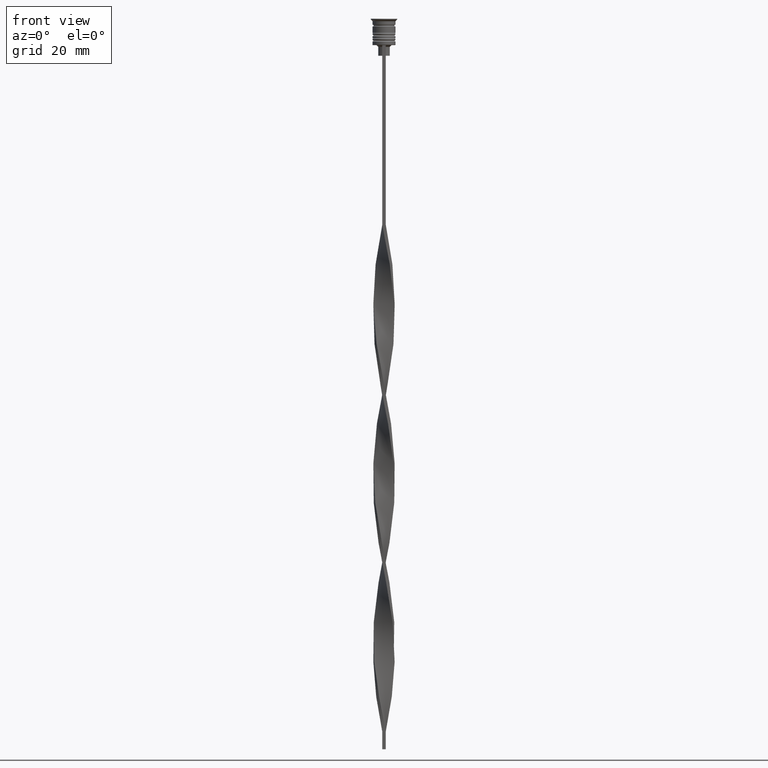
[diagram: clean part render]
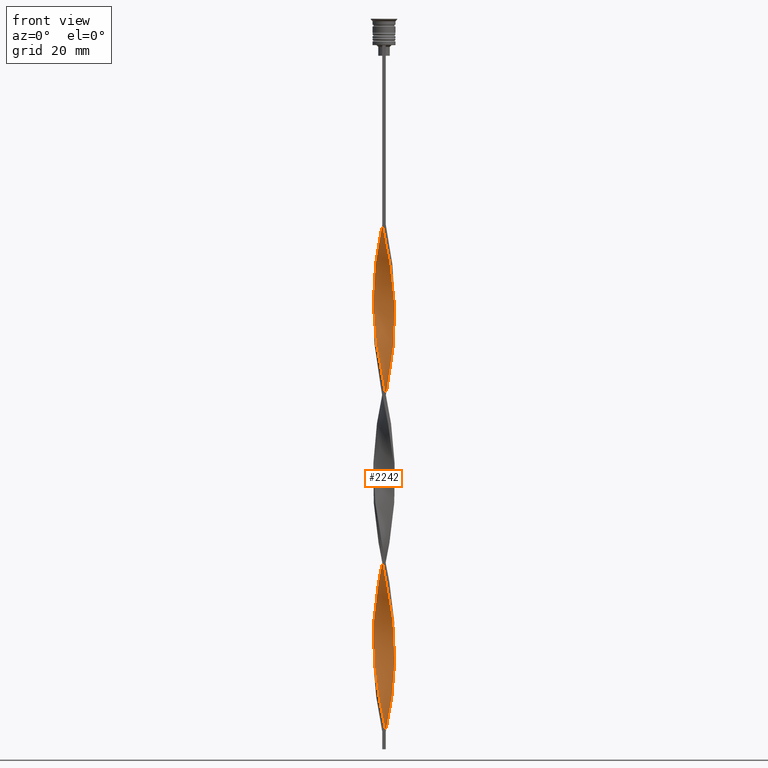
[diagram: same view with one face highlighted and labeled with its STEP entity id]
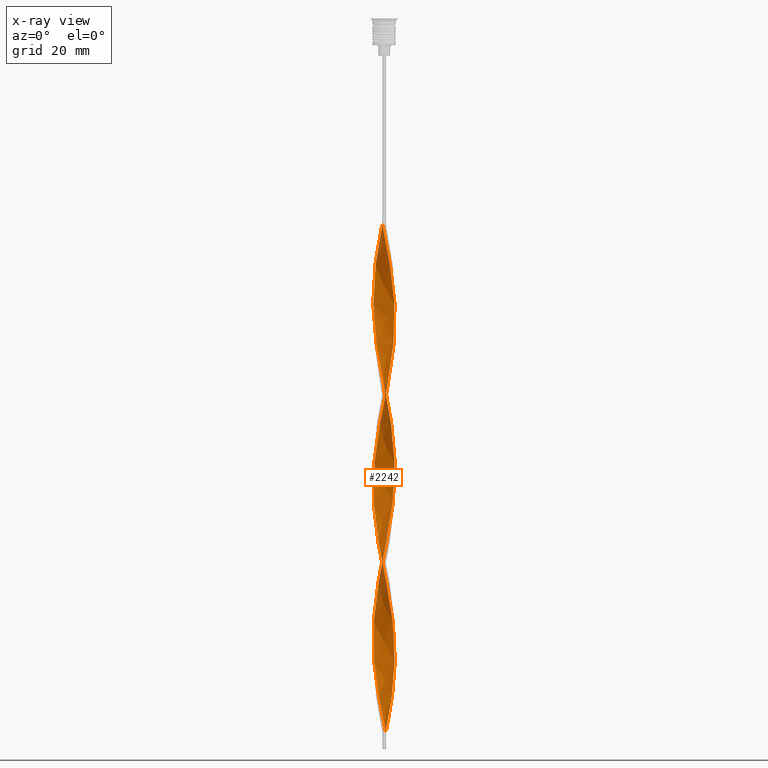
[diagram: x-ray of the same camera — body ghosted, the highlighted face saturated]
A machine part, front view. The second image highlights one B-rep face of the part: STEP entity #2242.
The next image is the same camera in x-ray: the body ghosted, the highlighted face saturated — about 0% of this face is hidden behind the body in this view.
In plain terms, the highlighted face is a freeform B-spline surface patch.
Its self-contained STEP definition (entity closure, byte-faithful):
#3 = CARTESIAN_POINT ( 'NONE',  ( 2.941068349153452388, -0.7746721665374233234, -81.08823529411763786 ) ) ;
#24 = CARTESIAN_POINT ( 'NONE',  ( 1.888233802353294744, -2.400832919529793941, -167.2058823529411882 ) ) ;
#41 = CARTESIAN_POINT ( 'NONE',  ( -2.092734363651090668, -2.206912522777888963, -188.3823529411764355 ) ) ;
#45 = CARTESIAN_POINT ( 'NONE',  ( -0.8934446992291307232, 2.920818749814322324, -113.5588235294117538 ) ) ;
#46 = CARTESIAN_POINT ( 'NONE',  ( 2.695369000030346740, 1.408895295497649247, -188.3823529411764355 ) ) ;
#62 = CARTESIAN_POINT ( 'NONE',  ( 2.004405056496874504, 2.287435325750164505, -98.02941176470588402 ) ) ;
#63 = CARTESIAN_POINT ( 'NONE',  ( -2.825922375284401156, -1.159132575987103841, -138.9705882352941160 ) ) ;
#75 = CARTESIAN_POINT ( 'NONE',  ( -3.033336708616754418, 0.2210620097576128096, -131.9117647058823479 ) ) ;
#79 = CARTESIAN_POINT ( 'NONE',  ( -1.042735103291661192, -2.857044540143419908, -151.6764705882353041 ) ) ;
#100 = CARTESIAN_POINT ( 'NONE',  ( 2.004405056496874504, 2.287435325750164505, -98.02941176470588402 ) ) ;
#104 = CARTESIAN_POINT ( 'NONE',  ( 2.297234924948886370, -2.012992126025985318, -170.0294117647058556 ) ) ;
#105 = CARTESIAN_POINT ( 'NONE',  ( 3.033336708616754418, -0.2210620097576117826, -179.9117647058823195 ) ) ;
#108 =( BOUNDED_CURVE ( )  B_SPLINE_CURVE ( 2, ( #1543, #142, #2969, #1257, #948, #1294, #454, #1003, #967, #2131, #3224, #1804, #989, #1577, #2117, #1823, #433, #3495, #708, #2377, #2936, #1507, #2708, #1560, #2991, #654, #2695, #1781, #163, #2429, #3477, #2416, #2637, #3530, #3258, #724, #3545, #1858, #2058, #177, #3184, #2910, #380, #400, #110, #1220, #2077, #2657, #127, #1657, #1893, #797, #2447, #2788, #3583, #2480, #3055, #1944, #3617, #1082, #2740, #2465, #3566, #3293, #1930, #1311, #763, #3019, #1876, #243, #1051, #2200, #1036, #3004, #1367, #1063, #262, #2167, #192, #1353, #2182, #2221, #3341, #212, #517, #813, #484, #1643, #3324, #1609, #228, #2492, #3070, #3038, #2774, #1336, #529, #3306, #776, #1389, #2514, #1016, #1908 ),
 .UNSPECIFIED., .F., .T. ) 
 B_SPLINE_CURVE_WITH_KNOTS ( ( 3, 2, 2, 2, 2, 2, 2, 2, 2, 2, 2, 2, 2, 2, 2, 2, 2, 2, 2, 2, 2, 2, 2, 2, 2, 2, 2, 2, 2, 2, 2, 2, 2, 2, 2, 2, 2, 2, 2, 2, 2, 2, 2, 2, 2, 2, 2, 2, 2, 2, 2, 3 ),
 ( 0.000000000000000000, 0.01470588235294117453, 0.02941176470588234906, 0.04411764705882353227, 0.05882352941176469813, 0.07352941176470588480, 0.08823529411764706454, 0.1029411764705882443, 0.1176470588235293963, 0.1323529411764705899, 0.1470588235294117696, 0.1617647058823529493, 0.1764705882352941291, 0.1911764705882352811, 0.2058823529411764885, 0.2205882352941176405, 0.2352941176470587925, 0.2500000000000000000, 0.2647058823529411797, 0.2794117647058823595, 0.2941176470588235392, 0.3088235294117647189, 0.3235294117647058987, 0.3382352941176470229, 0.3529411764705882582, 0.3676470588235294379, 0.3823529411764705621, 0.3970588235294117418, 0.4117647058823529771, 0.4264705882352941013, 0.4411764705882352811, 0.4558823529411764608, 0.4705882352941175850, 0.4852941176470588203, 0.5000000000000000000, 0.5147058823529411242, 0.5294117647058823595, 0.5441176470588234837, 0.5588235294117647189, 0.5735294117647058432, 0.5882352941176470784, 0.6029411764705882026, 0.6176470588235294379, 0.6323529411764705621, 0.6470588235294117974, 0.6617647058823529216, 0.6764705882352940458, 0.6911764705882351700, 0.7058823529411765163, 0.7205882352941176405, 0.7352941176470588758, 0.7500000000000000000 ),
 .UNSPECIFIED. ) 
 CURVE ( )  GEOMETRIC_REPRESENTATION_ITEM ( )  RATIONAL_B_SPLINE_CURVE ( ( 1.000000000000000000, 0.9957341762950344677, 1.000000000000000000, 0.9957341762950344677, 1.000000000000000000, 0.9957341762950344677, 1.000000000000000000, 0.9957341762950344677, 1.000000000000000000, 0.9957341762950344677, 1.000000000000000000, 0.9957341762950344677, 1.000000000000000000, 0.9957341762950344677, 1.000000000000000000, 0.9957341762950344677, 1.000000000000000000, 0.9957341762950344677, 1.000000000000000000, 0.9957341762950344677, 1.000000000000000000, 0.9957341762950344677, 1.000000000000000000, 0.9957341762950344677, 1.000000000000000000, 0.9957341762950344677, 1.000000000000000000, 0.9957341762950344677, 1.000000000000000000, 0.9957341762950344677, 1.000000000000000000, 0.9957341762950344677, 1.000000000000000000, 0.9957341762950344677, 1.000000000000000000, 0.9957341762950344677, 1.000000000000000000, 0.9957341762950344677, 1.000000000000000000, 0.9957341762950344677, 1.000000000000000000, 0.9957341762950344677, 1.000000000000000000, 0.9957341762950344677, 1.000000000000000000, 0.9957341762950344677, 1.000000000000000000, 0.9957341762950344677, 1.000000000000000000, 0.9957341762950344677, 1.000000000000000000, 0.9957341762950344677, 1.000000000000000000, 0.9957341762950344677, 1.000000000000000000, 0.9957341762950344677, 1.000000000000000000, 0.9957341762950344677, 1.000000000000000000, 0.9957341762950344677, 1.000000000000000000, 0.9957341762950344677, 1.000000000000000000, 0.9957341762950344677, 1.000000000000000000, 0.9957341762950344677, 1.000000000000000000, 0.9957341762950344677, 1.000000000000000000, 0.9957341762950344677, 1.000000000000000000, 0.9957341762950344677, 1.000000000000000000, 0.9957341762950344677, 1.000000000000000000, 0.9957341762950344677, 1.000000000000000000, 0.9957341762950344677, 1.000000000000000000, 0.9957341762950344677, 1.000000000000000000, 0.9957341762950344677, 1.000000000000000000, 0.9957341762950344677, 1.000000000000000000, 0.9957341762950344677, 1.000000000000000000, 0.9957341762950344677, 1.000000000000000000, 0.9957341762950344677, 1.000000000000000000, 0.9957341762950344677, 1.000000000000000000, 0.9957341762950344677, 1.000000000000000000, 0.9957341762950344677, 1.000000000000000000, 0.9957341762950344677, 1.000000000000000000, 0.9957341762950344677, 1.000000000000000000, 0.9957341762950344677, 1.000000000000000000 ) ) 
 REPRESENTATION_ITEM ( '' )  );
#110 = CARTESIAN_POINT ( 'NONE',  ( 2.695369000030346740, -1.408895295497649913, -120.6176470588235219 ) ) ;
#118 = CARTESIAN_POINT ( 'NONE',  ( -1.154187920767260289, 2.813867488627520341, -114.9705882352941018 ) ) ;
#122 = CARTESIAN_POINT ( 'NONE',  ( -0.5000000000000001110, 3.000000000000000000, -58.50000000000000000 ) ) ;
#127 = CARTESIAN_POINT ( 'NONE',  ( 3.022308424554498885, -0.3400761486298397585, -126.2647058823529420 ) ) ;
#133 = CARTESIAN_POINT ( 'NONE',  ( 2.628006467404950364, -1.556601299988307430, -76.85294117647059409 ) ) ;
#136 = CARTESIAN_POINT ( 'NONE',  ( -2.004405056496874504, 2.287435325750164505, -66.97058823529411598 ) ) ;
#142 = CARTESIAN_POINT ( 'NONE',  ( -0.7779909387260893761, 2.953668176878985641, -59.91176470588236214 ) ) ;
#157 = CARTESIAN_POINT ( 'NONE',  ( 3.012852296747023484, -0.5021420494578375804, -178.4999999999999716 ) ) ;
#163 = CARTESIAN_POINT ( 'NONE',  ( -1.154187920767260067, -2.813867488627520785, -98.02941176470588402 ) ) ;
#172 = CARTESIAN_POINT ( 'NONE',  ( -0.7779909387260893761, 2.953668176878985641, -155.9117647058824048 ) ) ;
#177 = CARTESIAN_POINT ( 'NONE',  ( 1.792442958670038999, -2.473170806831127333, -113.5588235294117396 ) ) ;
#187 = CARTESIAN_POINT ( 'NONE',  ( 2.297234924948886370, 2.012992126025985318, -138.9705882352941160 ) ) ;
#192 = CARTESIAN_POINT ( 'NONE',  ( -2.695369000030346740, 1.408895295497649469, -168.6176470588235077 ) ) ;
#204 = CARTESIAN_POINT ( 'NONE',  ( -0.3415330684894314350, -3.035256292798966360, -102.2647058823529420 ) ) ;
#212 = CARTESIAN_POINT ( 'NONE',  ( -3.053821120486486240, 0.06001802994261448004, -175.6764705882353041 ) ) ;
#221 = CARTESIAN_POINT ( 'NONE',  ( 2.990795728622511973, -0.6201342673170634479, -124.8529411764705799 ) ) ;
#223 = CARTESIAN_POINT ( 'NONE',  ( 0.5000000000000004441, 3.000000000000000000, -202.4999999999999716 ) ) ;
#228 = CARTESIAN_POINT ( 'NONE',  ( -2.462620696176917701, -1.784796713007145819, -185.5588235294117396 ) ) ;
#237 = CARTESIAN_POINT ( 'NONE',  ( 2.216367154323709787, -2.101699844669203454, -116.3823529411764781 ) ) ;
#243 = CARTESIAN_POINT ( 'NONE',  ( -0.7779909387260893761, 2.953668176878985641, -155.9117647058823763 ) ) ;
#254 = CARTESIAN_POINT ( 'NONE',  ( -3.022308424554498441, 0.3400761486298386482, -174.2647058823529278 ) ) ;
#262 = CARTESIAN_POINT ( 'NONE',  ( -2.390591389550001278, 1.880178929838698831, -165.7941176470588118 ) ) ;
#267 = DIRECTION ( 'NONE',  ( 0.000000000000000000, 1.000000000000000000, 0.000000000000000000 ) ) ;
#275 = CARTESIAN_POINT ( 'NONE',  ( -2.869284401559882625, -1.047202283617009844, -181.3235294117646674 ) ) ;
#279 = CARTESIAN_POINT ( 'NONE',  ( -0.2220090612739108182, -3.046331823121014803, -59.91176470588236214 ) ) ;
#295 = CARTESIAN_POINT ( 'NONE',  ( 3.033336708616754418, -0.2210620097576117826, -83.91176470588234793 ) ) ;
#296 = CARTESIAN_POINT ( 'NONE',  ( 0.3415330684894307689, -3.035256292798965916, -158.7352941176470438 ) ) ;
#319 = CARTESIAN_POINT ( 'NONE',  ( 3.053821120486486240, 0.06001802994261470209, -181.3235294117646959 ) ) ;
#341 = CARTESIAN_POINT ( 'NONE',  ( 3.053821120486486240, 0.06001802994261470209, -85.32352941176469585 ) ) ;
#343 = CARTESIAN_POINT ( 'NONE',  ( 2.941068349153452388, -0.7746721665374233234, -177.0882352941176237 ) ) ;
#357 = CARTESIAN_POINT ( 'NONE',  ( 1.414931142305390299, -2.706916227440719691, -68.38235294117646390 ) ) ;
#358 = CARTESIAN_POINT ( 'NONE',  ( 2.564815624776293657, 1.658658015008195097, -189.7941176470588118 ) ) ;
#370 = CARTESIAN_POINT ( 'NONE',  ( 2.564815624776293657, 1.658658015008195097, -93.79411764705882604 ) ) ;
#374 = CARTESIAN_POINT ( 'NONE',  ( 2.004405056496874504, 2.287435325750164505, -194.0294117647058556 ) ) ;
#375 = CARTESIAN_POINT ( 'NONE',  ( 0.5000000000000004441, 3.000000000000000000, -202.4999999999999716 ) ) ;
#380 = CARTESIAN_POINT ( 'NONE',  ( 2.390591389550001278, -1.880178929838698831, -117.7941176470588118 ) ) ;
#392 = CARTESIAN_POINT ( 'NONE',  ( 0.2220090612739105962, 3.046331823121015248, -107.9117647058823621 ) ) ;
#395 = CARTESIAN_POINT ( 'NONE',  ( -3.033336708616754418, 0.2210620097576128096, -131.9117647058823479 ) ) ;
#400 = CARTESIAN_POINT ( 'NONE',  ( 2.564815624776293657, -1.658658015008194653, -119.2058823529411598 ) ) ;
#410 = CARTESIAN_POINT ( 'NONE',  ( 0.3415330684894307689, -3.035256292798965916, -62.73529411764705799 ) ) ;
#413 = CARTESIAN_POINT ( 'NONE',  ( 2.825922375284401156, 1.159132575987104286, -186.9705882352941444 ) ) ;
#427 = CARTESIAN_POINT ( 'NONE',  ( 2.990795728622511973, 0.6201342673170632258, -184.1470588235293917 ) ) ;
#433 = CARTESIAN_POINT ( 'NONE',  ( -3.033336708616754862, -0.2210620097576112830, -81.08823529411763786 ) ) ;
#447 = CARTESIAN_POINT ( 'NONE',  ( 1.651582472329342188, -2.553874573485256150, -165.7941176470588118 ) ) ;
#454 = CARTESIAN_POINT ( 'NONE',  ( -2.004405056496874504, 2.287435325750164505, -66.97058823529411598 ) ) ;
#462 = CARTESIAN_POINT ( 'NONE',  ( -1.888233802353294744, -2.400832919529793941, -93.79411764705881183 ) ) ;
#479 = CARTESIAN_POINT ( 'NONE',  ( -2.908359051953456564, 0.8896334216520835891, -75.44117647058823195 ) ) ;
#484 = CARTESIAN_POINT ( 'NONE',  ( -2.941068349153452832, -0.7746721665374231014, -179.9117647058823195 ) ) ;
#494 = CARTESIAN_POINT ( 'NONE',  ( -1.651582472329342632, -2.553874573485255706, -95.20588235294117396 ) ) ;
#513 = CARTESIAN_POINT ( 'NONE',  ( -3.033336708616754862, -0.2210620097576112830, -81.08823529411763786 ) ) ;
#517 = CARTESIAN_POINT ( 'NONE',  ( -3.033336708616754862, -0.2210620097576112830, -177.0882352941176237 ) ) ;
#529 = CARTESIAN_POINT ( 'NONE',  ( -1.154187920767260067, -2.813867488627520785, -194.0294117647058556 ) ) ;
#549 = CARTESIAN_POINT ( 'NONE',  ( 2.825922375284401156, 1.159132575987104286, -90.97058823529413019 ) ) ;
#561 = CARTESIAN_POINT ( 'NONE',  ( -2.297234924948886370, -2.012992126025985762, -186.9705882352941444 ) ) ;
#586 = CARTESIAN_POINT ( 'NONE',  ( 3.012852296747023484, -0.5021420494578375804, -82.49999999999998579 ) ) ;
#587 = CARTESIAN_POINT ( 'NONE',  ( -3.053821120486486240, -0.06001802994261502128, -133.3235294117646959 ) ) ;
#599 = CARTESIAN_POINT ( 'NONE',  ( -2.825922375284401156, 1.159132575987104063, -170.0294117647058556 ) ) ;
#604 = CARTESIAN_POINT ( 'NONE',  ( -2.092734363651089780, 2.206912522777889851, -120.6176470588235219 ) ) ;
#607 = CARTESIAN_POINT ( 'NONE',  ( -2.564815624776292768, -1.658658015008195763, -141.7941176470587834 ) ) ;
#624 = CARTESIAN_POINT ( 'NONE',  ( -2.941068349153452832, 0.7746721665374232124, -129.0882352941176521 ) ) ;
#630 = CARTESIAN_POINT ( 'NONE',  ( -2.941068349153452832, 0.7746721665374232124, -129.0882352941176521 ) ) ;
#631 = CARTESIAN_POINT ( 'NONE',  ( 0.7779909387260891540, 2.953668176878986529, -201.0882352941176237 ) ) ;
#643 = CARTESIAN_POINT ( 'NONE',  ( 1.414931142305390077, -2.706916227440719691, -68.38235294117646390 ) ) ;
#646 = CARTESIAN_POINT ( 'NONE',  ( -1.307479267857235783, -2.760420903407854620, -150.2647058823529278 ) ) ;
#647 = CARTESIAN_POINT ( 'NONE',  ( -2.695369000030347184, -1.408895295497648581, -140.3823529411764639 ) ) ;
#649 = EDGE_LOOP ( 'NONE', ( #2597, #2093, #1578, #2674 ) ) ;
#654 = CARTESIAN_POINT ( 'NONE',  ( -1.888233802353294744, -2.400832919529793941, -93.79411764705882604 ) ) ;
#661 = CARTESIAN_POINT ( 'NONE',  ( 2.390591389550001722, 1.880178929838698387, -95.20588235294117396 ) ) ;
#664 = CARTESIAN_POINT ( 'NONE',  ( 1.888233802353294744, -2.400832919529793941, -167.2058823529411882 ) ) ;
#683 = CARTESIAN_POINT ( 'NONE',  ( 3.012852296747023484, -0.5021420494578375804, -82.49999999999998579 ) ) ;
#686 = CARTESIAN_POINT ( 'NONE',  ( 2.941068349153452388, -0.7746721665374233234, -177.0882352941176237 ) ) ;
#700 = CARTESIAN_POINT ( 'NONE',  ( 2.695369000030346740, 1.408895295497649247, -92.38235294117646390 ) ) ;
#703 = CARTESIAN_POINT ( 'NONE',  ( -1.042735103291662080, 2.857044540143419908, -61.32352941176470296 ) ) ;
#708 = CARTESIAN_POINT ( 'NONE',  ( -2.941068349153452832, -0.7746721665374231014, -83.91176470588234793 ) ) ;
#718 = CARTESIAN_POINT ( 'NONE',  ( -2.004405056496875837, -2.287435325750163617, -146.0294117647058556 ) ) ;
#724 = CARTESIAN_POINT ( 'NONE',  ( 0.7779909387260895981, -2.953668176878985641, -107.9117647058823621 ) ) ;
#742 = CARTESIAN_POINT ( 'NONE',  ( -2.216367154323710675, 2.101699844669202566, -164.3823529411764923 ) ) ;
#751 = CARTESIAN_POINT ( 'NONE',  ( 0.5000000000000004441, 3.000000000000000000, -202.4999999999999716 ) ) ;
#758 = CARTESIAN_POINT ( 'NONE',  ( 1.549961113263637280, -2.616795855119490533, -112.1470588235294059 ) ) ;
#763 = CARTESIAN_POINT ( 'NONE',  ( 0.05976200360775915654, 3.040794057959990582, -151.6764705882353041 ) ) ;
#772 = CARTESIAN_POINT ( 'NONE',  ( -2.748645434482415606, -1.301901791802658526, -86.73529411764704378 ) ) ;
#776 = CARTESIAN_POINT ( 'NONE',  ( -0.6174888838592809126, -2.978037521306644120, -196.8529411764705515 ) ) ;
#789 = CARTESIAN_POINT ( 'NONE',  ( 2.628006467404950808, 1.556601299988306542, -136.1470588235294201 ) ) ;
#797 = CARTESIAN_POINT ( 'NONE',  ( 3.012852296747023484, 0.5021420494578368032, -130.5000000000000000 ) ) ;
#809 = CARTESIAN_POINT ( 'NONE',  ( 1.651582472329341522, 2.553874573485256150, -143.2058823529411882 ) ) ;
#813 = CARTESIAN_POINT ( 'NONE',  ( -3.012852296747023484, -0.5021420494578371363, -178.5000000000000000 ) ) ;
#822 = CARTESIAN_POINT ( 'NONE',  ( -1.651582472329342632, -2.553874573485255706, -191.2058823529411598 ) ) ;
#826 = EDGE_CURVE ( 'NONE', #2457, #1141, #1372, .T. ) ;
#839 = CARTESIAN_POINT ( 'NONE',  ( 0.4999999999999997780, -3.000000000000000000, -202.4999999999999716 ) ) ;
#848 = CARTESIAN_POINT ( 'NONE',  ( 0.5000000000000004441, 3.000000000000000000, -106.4999999999999858 ) ) ;
#849 = CARTESIAN_POINT ( 'NONE',  ( 2.004405056496874504, 2.287435325750164505, -194.0294117647058556 ) ) ;
#861 = CARTESIAN_POINT ( 'NONE',  ( 0.4999999999999997780, -3.000000000000000000, -202.4999999999999716 ) ) ;
#866 = CARTESIAN_POINT ( 'NONE',  ( 0.05976200360776001697, -3.040794057959990582, -61.32352941176470296 ) ) ;
#867 = CARTESIAN_POINT ( 'NONE',  ( -2.908359051953456120, -0.8896334216520842553, -137.5588235294117680 ) ) ;
#884 = CARTESIAN_POINT ( 'NONE',  ( -0.05976200360775937165, 3.040794057959990582, -109.3235294117646959 ) ) ;
#919 = CARTESIAN_POINT ( 'NONE',  ( 2.216367154323710231, 2.101699844669202566, -96.61764705882355031 ) ) ;
#924 = CARTESIAN_POINT ( 'NONE',  ( 2.748645434482416050, -1.301901791802658082, -174.2647058823529278 ) ) ;
#925 = CARTESIAN_POINT ( 'NONE',  ( -1.042735103291661192, -2.857044540143419908, -151.6764705882353041 ) ) ;
#937 = CARTESIAN_POINT ( 'NONE',  ( -2.092734363651089780, 2.206912522777889851, -120.6176470588235219 ) ) ;
#940 = CARTESIAN_POINT ( 'NONE',  ( 2.908359051953456564, 0.8896334216520833671, -185.5588235294117396 ) ) ;
#948 = CARTESIAN_POINT ( 'NONE',  ( -1.549961113263636836, 2.616795855119490533, -64.14705882352940591 ) ) ;
#956 = CARTESIAN_POINT ( 'NONE',  ( 0.8934446992291309453, -2.920818749814322324, -65.55882352941178226 ) ) ;
#959 = CARTESIAN_POINT ( 'NONE',  ( 2.092734363651089780, -2.206912522777889407, -168.6176470588235077 ) ) ;
#967 = CARTESIAN_POINT ( 'NONE',  ( -2.390591389550001278, 1.880178929838698831, -69.79411764705881183 ) ) ;
#978 = CARTESIAN_POINT ( 'NONE',  ( -2.748645434482415606, 1.301901791802659192, -126.2647058823529420 ) ) ;
#981 = CARTESIAN_POINT ( 'NONE',  ( -1.549961113263637058, -2.616795855119490533, -148.8529411764705799 ) ) ;
#989 = CARTESIAN_POINT ( 'NONE',  ( -2.908359051953456564, 0.8896334216520835891, -75.44117647058823195 ) ) ;
#993 = EDGE_CURVE ( 'NONE', #3478, #2266, #1744, .T. ) ;
#997 = CARTESIAN_POINT ( 'NONE',  ( 1.792442958670039443, 2.473170806831126001, -195.4411764705882604 ) ) ;
#1003 = CARTESIAN_POINT ( 'NONE',  ( -2.216367154323710231, 2.101699844669202566, -68.38235294117646390 ) ) ;
#1011 = CARTESIAN_POINT ( 'NONE',  ( -1.549961113263636836, 2.616795855119490533, -160.1470588235293917 ) ) ;
#1016 = CARTESIAN_POINT ( 'NONE',  ( 0.2220090612739113178, -3.046331823121015692, -201.0882352941176237 ) ) ;
#1030 = CARTESIAN_POINT ( 'NONE',  ( -1.307479267857234895, 2.760420903407855509, -158.7352941176470154 ) ) ;
#1036 = CARTESIAN_POINT ( 'NONE',  ( -1.549961113263636836, 2.616795855119490533, -160.1470588235293917 ) ) ;
#1044 = CARTESIAN_POINT ( 'NONE',  ( 1.154187920767261621, 2.813867488627519897, -146.0294117647058556 ) ) ;
#1051 = CARTESIAN_POINT ( 'NONE',  ( -1.042735103291662080, 2.857044540143419908, -157.3235294117646959 ) ) ;
#1058 = CARTESIAN_POINT ( 'NONE',  ( 2.564815624776293657, -1.658658015008194653, -119.2058823529411455 ) ) ;
#1063 = CARTESIAN_POINT ( 'NONE',  ( -2.216367154323710231, 2.101699844669202566, -164.3823529411764923 ) ) ;
#1078 = CARTESIAN_POINT ( 'NONE',  ( -0.05976200360776012799, -3.040794057959990582, -103.6764705882352899 ) ) ;
#1082 = CARTESIAN_POINT ( 'NONE',  ( 1.888233802353293633, 2.400832919529794385, -141.7941176470587834 ) ) ;
#1099 = CARTESIAN_POINT ( 'NONE',  ( 2.462620696176917701, -1.784796713007146041, -75.44117647058823195 ) ) ;
#1110 = CARTESIAN_POINT ( 'NONE',  ( -3.053821120486486240, 0.06001802994261448004, -175.6764705882353041 ) ) ;
#1134 = CARTESIAN_POINT ( 'NONE',  ( 0.7779909387260891540, 2.953668176878986973, -105.0882352941176521 ) ) ;
#1136 = CARTESIAN_POINT ( 'NONE',  ( 1.042735103291662080, 2.857044540143419908, -199.6764705882352757 ) ) ;
#1141 = VERTEX_POINT ( 'NONE', #1142 ) ;
#1142 = CARTESIAN_POINT ( 'NONE',  ( -0.5000000000000001110, 3.000000000000000000, -58.50000000000000000 ) ) ;
#1151 = CARTESIAN_POINT ( 'NONE',  ( -2.748645434482415606, -1.301901791802658526, -182.7352941176470438 ) ) ;
#1155 = CARTESIAN_POINT ( 'NONE',  ( 1.042735103291662080, 2.857044540143419908, -103.6764705882352899 ) ) ;
#1156 = CARTESIAN_POINT ( 'NONE',  ( -2.390591389550000834, -1.880178929838698831, -143.2058823529411882 ) ) ;
#1171 = CARTESIAN_POINT ( 'NONE',  ( -2.462620696176918589, 1.784796713007145375, -123.4411764705882177 ) ) ;
#1172 = CARTESIAN_POINT ( 'NONE',  ( 1.414931142305390077, -2.706916227440719691, -164.3823529411764923 ) ) ;
#1185 = CARTESIAN_POINT ( 'NONE',  ( -0.2220090612739108182, -3.046331823121015248, -59.91176470588236214 ) ) ;
#1190 = CARTESIAN_POINT ( 'NONE',  ( -0.5000000000000001110, -3.000000000000000000, -154.4999999999999716 ) ) ;
#1210 = CARTESIAN_POINT ( 'NONE',  ( 2.825922375284401156, 1.159132575987104286, -90.97058823529411598 ) ) ;
#1215 = CARTESIAN_POINT ( 'NONE',  ( -1.792442958670038555, -2.473170806831126889, -147.4411764705882320 ) ) ;
#1220 = CARTESIAN_POINT ( 'NONE',  ( 2.825922375284401156, -1.159132575987104508, -122.0294117647058840 ) ) ;
#1226 = CARTESIAN_POINT ( 'NONE',  ( 2.869284401559882625, -1.047202283617009400, -79.67647058823528994 ) ) ;
#1232 = CARTESIAN_POINT ( 'NONE',  ( -2.695369000030347184, -1.408895295497648581, -140.3823529411764639 ) ) ;
#1245 = CARTESIAN_POINT ( 'NONE',  ( 0.7779909387260891540, 2.953668176878986529, -105.0882352941176521 ) ) ;
#1248 = CARTESIAN_POINT ( 'NONE',  ( -2.390591389550001278, 1.880178929838698831, -69.79411764705881183 ) ) ;
#1257 = CARTESIAN_POINT ( 'NONE',  ( -1.307479267857234673, 2.760420903407855509, -62.73529411764705799 ) ) ;
#1274 = CARTESIAN_POINT ( 'NONE',  ( 1.042735103291662080, 2.857044540143419908, -199.6764705882352757 ) ) ;
#1289 = CARTESIAN_POINT ( 'NONE',  ( -1.042735103291662080, 2.857044540143419908, -157.3235294117646959 ) ) ;
#1294 = CARTESIAN_POINT ( 'NONE',  ( -1.792442958670039221, 2.473170806831127333, -65.55882352941178226 ) ) ;
#1306 = CARTESIAN_POINT ( 'NONE',  ( -0.5000000000000001110, 3.000000000000000000, -154.4999999999999716 ) ) ;
#1311 = CARTESIAN_POINT ( 'NONE',  ( 0.3415330684894317681, 3.035256292798965916, -150.2647058823528994 ) ) ;
#1331 = CARTESIAN_POINT ( 'NONE',  ( 2.390591389550001278, -1.880178929838698831, -117.7941176470588118 ) ) ;
#1336 = CARTESIAN_POINT ( 'NONE',  ( -1.414931142305390077, -2.706916227440719691, -192.6176470588235077 ) ) ;
#1346 = CARTESIAN_POINT ( 'NONE',  ( -0.8934446992291313894, -2.920818749814322324, -99.44117647058823195 ) ) ;
#1353 = CARTESIAN_POINT ( 'NONE',  ( -2.825922375284401156, 1.159132575987103841, -170.0294117647058840 ) ) ;
#1362 = CARTESIAN_POINT ( 'NONE',  ( 2.695369000030346740, -1.408895295497649913, -120.6176470588235219 ) ) ;
#1367 = CARTESIAN_POINT ( 'NONE',  ( -2.004405056496874504, 2.287435325750164505, -162.9705882352940876 ) ) ;
#1372 = LINE ( 'NONE', #1913, #3503 ) ;
#1389 = CARTESIAN_POINT ( 'NONE',  ( -0.3415330684894313795, -3.035256292798966360, -198.2647058823529562 ) ) ;
#1400 = CARTESIAN_POINT ( 'NONE',  ( -0.6174888838592809126, -2.978037521306644120, -196.8529411764705515 ) ) ;
#1415 = CARTESIAN_POINT ( 'NONE',  ( -2.941068349153452832, -0.7746721665374231014, -179.9117647058823195 ) ) ;
#1419 = CARTESIAN_POINT ( 'NONE',  ( 2.564815624776293657, 1.658658015008195097, -93.79411764705881183 ) ) ;
#1420 = CARTESIAN_POINT ( 'NONE',  ( 2.990795728622512417, 0.6201342673170633368, -184.1470588235293917 ) ) ;
#1444 = CARTESIAN_POINT ( 'NONE',  ( 2.695369000030346740, 1.408895295497649247, -92.38235294117646390 ) ) ;
#1445 = CARTESIAN_POINT ( 'NONE',  ( 0.6174888838592809126, -2.978037521306644120, -160.1470588235293917 ) ) ;
#1462 = CARTESIAN_POINT ( 'NONE',  ( -1.414931142305389633, 2.706916227440719691, -116.3823529411764781 ) ) ;
#1463 = CARTESIAN_POINT ( 'NONE',  ( 2.825922375284401156, 1.159132575987104286, -186.9705882352941444 ) ) ;
#1475 = CARTESIAN_POINT ( 'NONE',  ( 1.549961113263636836, 2.616795855119490533, -100.8529411764705941 ) ) ;
#1478 = CARTESIAN_POINT ( 'NONE',  ( 1.888233802353294744, -2.400832919529793941, -71.20588235294118817 ) ) ;
#1492 = CARTESIAN_POINT ( 'NONE',  ( -0.5000000000000001110, -3.000000000000000000, -58.50000000000000000 ) ) ;
#1498 = CARTESIAN_POINT ( 'NONE',  ( 2.216367154323710675, 2.101699844669202566, -192.6176470588235077 ) ) ;
#1501 = CARTESIAN_POINT ( 'NONE',  ( 2.869284401559882625, -1.047202283617009400, -175.6764705882353041 ) ) ;
#1507 = CARTESIAN_POINT ( 'NONE',  ( -2.628006467404950364, -1.556601299988307208, -88.14705882352940591 ) ) ;
#1517 = CARTESIAN_POINT ( 'NONE',  ( -0.8934446992291307232, 2.920818749814322324, -113.5588235294117396 ) ) ;
#1520 = CARTESIAN_POINT ( 'NONE',  ( 1.307479267857235561, 2.760420903407855064, -198.2647058823529562 ) ) ;
#1533 = CARTESIAN_POINT ( 'NONE',  ( 0.05976200360776001697, -3.040794057959990582, -61.32352941176470296 ) ) ;
#1537 = CARTESIAN_POINT ( 'NONE',  ( 2.695369000030346740, 1.408895295497649247, -188.3823529411764355 ) ) ;
#1543 = CARTESIAN_POINT ( 'NONE',  ( -0.5000000000000001110, 3.000000000000000000, -58.50000000000000000 ) ) ;
#1551 = CARTESIAN_POINT ( 'NONE',  ( -2.564815624776292768, -1.658658015008195763, -141.7941176470588118 ) ) ;
#1560 = CARTESIAN_POINT ( 'NONE',  ( -2.297234924948885926, -2.012992126025985762, -90.97058823529411598 ) ) ;
#1572 = CARTESIAN_POINT ( 'NONE',  ( 0.6174888838592811346, 2.978037521306644120, -148.8529411764705799 ) ) ;
#1577 = CARTESIAN_POINT ( 'NONE',  ( -2.990795728622512417, 0.6201342673170636699, -76.85294117647059409 ) ) ;
#1578 = ORIENTED_EDGE ( 'NONE', *, *, #993, .F. ) ;
#1588 = CARTESIAN_POINT ( 'NONE',  ( 3.022308424554498885, -0.3400761486298397585, -126.2647058823529420 ) ) ;
#1604 = CARTESIAN_POINT ( 'NONE',  ( -2.092734363651090668, -2.206912522777888963, -92.38235294117646390 ) ) ;
#1609 = CARTESIAN_POINT ( 'NONE',  ( -2.628006467404950364, -1.556601299988307208, -184.1470588235293917 ) ) ;
#1624 = CARTESIAN_POINT ( 'NONE',  ( 1.307479267857234895, -2.760420903407855509, -110.7352941176470438 ) ) ;
#1638 = CARTESIAN_POINT ( 'NONE',  ( -3.012852296747023484, -0.5021420494578371363, -82.49999999999998579 ) ) ;
#1643 = CARTESIAN_POINT ( 'NONE',  ( -2.869284401559882625, -1.047202283617009844, -181.3235294117646959 ) ) ;
#1657 = CARTESIAN_POINT ( 'NONE',  ( 3.053821120486486684, -0.06001802994261339758, -127.6764705882352757 ) ) ;
#1671 = CARTESIAN_POINT ( 'NONE',  ( -2.390591389550001278, 1.880178929838698831, -165.7941176470588118 ) ) ;
#1677 = CARTESIAN_POINT ( 'NONE',  ( 1.792442958670039443, 2.473170806831126001, -99.44117647058823195 ) ) ;
#1689 = CARTESIAN_POINT ( 'NONE',  ( -2.628006467404950364, -1.556601299988307208, -184.1470588235293917 ) ) ;
#1694 = CARTESIAN_POINT ( 'NONE',  ( 2.628006467404950364, -1.556601299988307652, -76.85294117647060830 ) ) ;
#1710 = CARTESIAN_POINT ( 'NONE',  ( -2.908359051953456564, 0.8896334216520835891, -171.4411764705882035 ) ) ;
#1714 = CARTESIAN_POINT ( 'NONE',  ( 1.154187920767260067, -2.813867488627520785, -66.97058823529411598 ) ) ;
#1715 = CARTESIAN_POINT ( 'NONE',  ( 1.154187920767260067, -2.813867488627520785, -162.9705882352940876 ) ) ;
#1729 = CARTESIAN_POINT ( 'NONE',  ( -1.414931142305390299, -2.706916227440719691, -192.6176470588235077 ) ) ;
#1738 = CARTESIAN_POINT ( 'NONE',  ( 0.8934446992291309453, -2.920818749814322324, -65.55882352941179647 ) ) ;
#1739 = CARTESIAN_POINT ( 'NONE',  ( 2.748645434482416050, -1.301901791802658082, -174.2647058823529278 ) ) ;
#1744 = B_SPLINE_CURVE_WITH_KNOTS ( 'NONE', 3,
 ( #751, #1879, #3008, #1999 ),
 .UNSPECIFIED., .F., .F.,
 ( 4, 4 ),
 ( 0.000000000000000000, 1.000000000000000000 ),
 .UNSPECIFIED. ) ;
#1750 = CARTESIAN_POINT ( 'NONE',  ( -3.012852296747023484, 0.5021420494578379135, -130.5000000000000000 ) ) ;
#1754 = FACE_OUTER_BOUND ( 'NONE', #649, .T. ) ;
#1769 = CARTESIAN_POINT ( 'NONE',  ( 3.033336708616754418, -0.2210620097576117826, -83.91176470588234793 ) ) ;
#1773 = CARTESIAN_POINT ( 'NONE',  ( 2.628006467404950364, -1.556601299988307652, -172.8529411764705799 ) ) ;
#1774 = CARTESIAN_POINT ( 'NONE',  ( -1.792442958670038777, -2.473170806831127333, -147.4411764705882320 ) ) ;
#1781 = CARTESIAN_POINT ( 'NONE',  ( -1.414931142305390077, -2.706916227440719691, -96.61764705882355031 ) ) ;
#1788 = CARTESIAN_POINT ( 'NONE',  ( 1.042735103291662080, 2.857044540143419908, -103.6764705882352899 ) ) ;
#1794 = CARTESIAN_POINT ( 'NONE',  ( 2.462620696176917701, -1.784796713007146041, -171.4411764705882035 ) ) ;
#1804 = CARTESIAN_POINT ( 'NONE',  ( -2.825922375284401156, 1.159132575987103841, -74.02941176470586981 ) ) ;
#1815 = CARTESIAN_POINT ( 'NONE',  ( -2.462620696176918589, 1.784796713007145375, -123.4411764705882177 ) ) ;
#1818 = CARTESIAN_POINT ( 'NONE',  ( -2.390591389550000834, -1.880178929838698831, -143.2058823529411882 ) ) ;
#1823 = CARTESIAN_POINT ( 'NONE',  ( -3.053821120486486240, 0.06001802994261448004, -79.67647058823528994 ) ) ;
#1835 = CARTESIAN_POINT ( 'NONE',  ( -2.564815624776293657, 1.658658015008195097, -71.20588235294118817 ) ) ;
#1847 = CARTESIAN_POINT ( 'NONE',  ( -0.2220090612739108182, -3.046331823121014803, -155.9117647058824048 ) ) ;
#1858 = CARTESIAN_POINT ( 'NONE',  ( 1.307479267857234673, -2.760420903407855509, -110.7352941176470438 ) ) ;
#1869 = CARTESIAN_POINT ( 'NONE',  ( 1.792442958670038777, -2.473170806831126889, -113.5588235294117538 ) ) ;
#1876 = CARTESIAN_POINT ( 'NONE',  ( -0.5000000000000001110, 3.000000000000000000, -154.4999999999999716 ) ) ;
#1879 = CARTESIAN_POINT ( 'NONE',  ( 0.5000000000000002220, 1.000000000000000000, -202.4999999999999716 ) ) ;
#1888 = CARTESIAN_POINT ( 'NONE',  ( 0.2220090612739113178, -3.046331823121015248, -105.0882352941176521 ) ) ;
#1893 = CARTESIAN_POINT ( 'NONE',  ( 3.033336708616754418, 0.2210620097576116716, -129.0882352941176521 ) ) ;
#1903 = CARTESIAN_POINT ( 'NONE',  ( 3.053821120486486684, -0.06001802994261339758, -127.6764705882352615 ) ) ;
#1908 = CARTESIAN_POINT ( 'NONE',  ( 0.4999999999999997780, -3.000000000000000000, -202.4999999999999716 ) ) ;
#1913 = CARTESIAN_POINT ( 'NONE',  ( -0.5000000000000001110, -3.000000000000000000, -58.50000000000000000 ) ) ;
#1925 = CARTESIAN_POINT ( 'NONE',  ( 0.8934446992291303902, 2.920818749814322324, -147.4411764705882320 ) ) ;
#1930 = CARTESIAN_POINT ( 'NONE',  ( 0.6174888838592811346, 2.978037521306644120, -148.8529411764705799 ) ) ;
#1940 = CARTESIAN_POINT ( 'NONE',  ( 1.414931142305390743, 2.706916227440719691, -144.6176470588235361 ) ) ;
#1944 = CARTESIAN_POINT ( 'NONE',  ( 2.297234924948885926, 2.012992126025985318, -138.9705882352941160 ) ) ;
#1956 = CARTESIAN_POINT ( 'NONE',  ( 2.908359051953456564, 0.8896334216520833671, -89.55882352941175384 ) ) ;
#1978 = CARTESIAN_POINT ( 'NONE',  ( 0.2220090612739105962, 3.046331823121014803, -107.9117647058823621 ) ) ;
#1979 = CARTESIAN_POINT ( 'NONE',  ( 1.792442958670039665, 2.473170806831126445, -195.4411764705882604 ) ) ;
#1995 = CARTESIAN_POINT ( 'NONE',  ( -2.216367154323710231, -2.101699844669202566, -144.6176470588235361 ) ) ;
#1999 = CARTESIAN_POINT ( 'NONE',  ( 0.4999999999999997780, -3.000000000000000000, -202.4999999999999716 ) ) ;
#2012 = CARTESIAN_POINT ( 'NONE',  ( -1.651582472329342188, 2.553874573485256150, -117.7941176470588118 ) ) ;
#2013 = CARTESIAN_POINT ( 'NONE',  ( -2.990795728622511973, -0.6201342673170625597, -136.1470588235294201 ) ) ;
#2036 = CARTESIAN_POINT ( 'NONE',  ( 3.022308424554498885, 0.3400761486298390923, -86.73529411764704378 ) ) ;
#2037 = CARTESIAN_POINT ( 'NONE',  ( -0.5000000000000001110, -3.000000000000000000, -154.4999999999999716 ) ) ;
#2048 = CARTESIAN_POINT ( 'NONE',  ( 1.792442958670039665, 2.473170806831126445, -99.44117647058823195 ) ) ;
#2053 = CARTESIAN_POINT ( 'NONE',  ( 2.869284401559882625, -1.047202283617009400, -175.6764705882353041 ) ) ;
#2054 = CARTESIAN_POINT ( 'NONE',  ( -0.7779909387260895981, -2.953668176878986085, -153.0882352941176237 ) ) ;
#2058 = CARTESIAN_POINT ( 'NONE',  ( 1.549961113263637280, -2.616795855119490533, -112.1470588235294059 ) ) ;
#2067 = CARTESIAN_POINT ( 'NONE',  ( -2.297234924948885926, 2.012992126025986206, -122.0294117647058840 ) ) ;
#2070 = CARTESIAN_POINT ( 'NONE',  ( -0.7779909387260893761, 2.953668176878985641, -59.91176470588236214 ) ) ;
#2077 = CARTESIAN_POINT ( 'NONE',  ( 2.908359051953456564, -0.8896334216520829230, -123.4411764705882177 ) ) ;
#2084 = CARTESIAN_POINT ( 'NONE',  ( 1.651582472329342188, -2.553874573485256150, -69.79411764705881183 ) ) ;
#2088 = CARTESIAN_POINT ( 'NONE',  ( -2.908359051953456120, -0.8896334216520842553, -137.5588235294117680 ) ) ;
#2093 = ORIENTED_EDGE ( 'NONE', *, *, #2184, .T. ) ;
#2108 = CARTESIAN_POINT ( 'NONE',  ( 1.307479267857235339, 2.760420903407855064, -102.2647058823529420 ) ) ;
#2112 = CARTESIAN_POINT ( 'NONE',  ( 1.154187920767260067, -2.813867488627520785, -162.9705882352940876 ) ) ;
#2117 = CARTESIAN_POINT ( 'NONE',  ( -3.022308424554498441, 0.3400761486298386482, -78.26470588235292780 ) ) ;
#2126 = CARTESIAN_POINT ( 'NONE',  ( -2.825922375284401156, 1.159132575987104063, -74.02941176470586981 ) ) ;
#2131 = CARTESIAN_POINT ( 'NONE',  ( -2.564815624776293657, 1.658658015008195097, -71.20588235294118817 ) ) ;
#2141 = CARTESIAN_POINT ( 'NONE',  ( -1.792442958670038999, 2.473170806831126889, -161.5588235294117396 ) ) ;
#2161 = CARTESIAN_POINT ( 'NONE',  ( -0.6174888838592809126, -2.978037521306644120, -100.8529411764705941 ) ) ;
#2167 = CARTESIAN_POINT ( 'NONE',  ( -2.564815624776293657, 1.658658015008195097, -167.2058823529411882 ) ) ;
#2177 = CARTESIAN_POINT ( 'NONE',  ( -2.462620696176917701, -1.784796713007145819, -89.55882352941175384 ) ) ;
#2182 = CARTESIAN_POINT ( 'NONE',  ( -2.908359051953456564, 0.8896334216520835891, -171.4411764705882035 ) ) ;
#2184 = EDGE_CURVE ( 'NONE', #1141, #2266, #108, .T. ) ;
#2194 = CARTESIAN_POINT ( 'NONE',  ( 2.908359051953456564, -0.8896334216520829230, -123.4411764705882177 ) ) ;
#2200 = CARTESIAN_POINT ( 'NONE',  ( -1.307479267857234673, 2.760420903407855509, -158.7352941176470438 ) ) ;
#2217 = CARTESIAN_POINT ( 'NONE',  ( 1.888233802353293633, 2.400832919529794385, -141.7941176470588118 ) ) ;
#2221 = CARTESIAN_POINT ( 'NONE',  ( -2.990795728622512417, 0.6201342673170636699, -172.8529411764705799 ) ) ;
#2242 = ADVANCED_FACE ( 'NONE', ( #1754 ), #3626, .T. ) ;
#2246 = CARTESIAN_POINT ( 'NONE',  ( -3.033336708616754862, -0.2210620097576112830, -177.0882352941176237 ) ) ;
#2251 = CARTESIAN_POINT ( 'NONE',  ( 2.390591389550001722, 1.880178929838698387, -95.20588235294117396 ) ) ;
#2252 = CARTESIAN_POINT ( 'NONE',  ( 3.012852296747023484, -0.5021420494578375804, -178.5000000000000000 ) ) ;
#2266 = VERTEX_POINT ( 'NONE', #839 ) ;
#2268 = CARTESIAN_POINT ( 'NONE',  ( -2.564815624776293657, 1.658658015008195097, -167.2058823529411882 ) ) ;
#2274 = CARTESIAN_POINT ( 'NONE',  ( -0.3415330684894307689, 3.035256292798965916, -110.7352941176470438 ) ) ;
#2289 = CARTESIAN_POINT ( 'NONE',  ( -0.8934446992291313894, -2.920818749814322324, -195.4411764705882604 ) ) ;
#2293 = CARTESIAN_POINT ( 'NONE',  ( -1.154187920767260289, 2.813867488627520341, -114.9705882352941018 ) ) ;
#2294 = CARTESIAN_POINT ( 'NONE',  ( 0.05976200360776001697, -3.040794057959990582, -157.3235294117646959 ) ) ;
#2311 = CARTESIAN_POINT ( 'NONE',  ( -2.628006467404950364, 1.556601299988307430, -124.8529411764705799 ) ) ;
#2312 = CARTESIAN_POINT ( 'NONE',  ( 1.651582472329342188, -2.553874573485256150, -165.7941176470588118 ) ) ;
#2330 = CARTESIAN_POINT ( 'NONE',  ( 2.941068349153452388, -0.7746721665374233234, -81.08823529411763786 ) ) ;
#2336 = CARTESIAN_POINT ( 'NONE',  ( -2.990795728622511529, -0.6201342673170624487, -136.1470588235294201 ) ) ;
#2337 = CARTESIAN_POINT ( 'NONE',  ( -1.549961113263637058, -2.616795855119490533, -148.8529411764705799 ) ) ;
#2350 = CARTESIAN_POINT ( 'NONE',  ( -0.6174888838592813567, 2.978037521306644120, -112.1470588235294059 ) ) ;
#2353 = EDGE_CURVE ( 'NONE', #2457, #3478, #2395, .T. ) ;
#2355 = CARTESIAN_POINT ( 'NONE',  ( 0.3415330684894307689, -3.035256292798965916, -158.7352941176470154 ) ) ;
#2367 = CARTESIAN_POINT ( 'NONE',  ( 3.022308424554498885, 0.3400761486298390923, -86.73529411764704378 ) ) ;
#2370 = CARTESIAN_POINT ( 'NONE',  ( -1.549961113263636836, 2.616795855119490533, -64.14705882352940591 ) ) ;
#2377 = CARTESIAN_POINT ( 'NONE',  ( -2.869284401559882625, -1.047202283617009844, -85.32352941176469585 ) ) ;
#2385 = CARTESIAN_POINT ( 'NONE',  ( -0.3415330684894307689, 3.035256292798965916, -110.7352941176470438 ) ) ;
#2391 = CARTESIAN_POINT ( 'NONE',  ( -3.022308424554498441, -0.3400761486298386482, -134.7352941176470722 ) ) ;
#2395 =( BOUNDED_CURVE ( )  B_SPLINE_CURVE ( 2, ( #1492, #1185, #1533, #410, #2625, #956, #2662, #643, #2084, #2648, #3450, #2923, #2947, #133, #3191, #1226, #2330, #683, #1769, #3173, #2367, #2882, #3212, #1210, #700, #370, #661, #919, #100, #2048, #1475, #2108, #1788, #1245, #3157, #392, #2900, #2385, #2350, #1517, #118, #3485, #3466, #2604, #937, #2067, #1815, #3504, #978, #3232, #624, #1750, #75, #587, #2905, #2013, #867, #63, #647, #607, #1156, #1995, #2589, #1774, #2337, #3455, #925, #2054, #2037, #2827, #2294, #296, #1445, #3141, #1715, #1172, #2312, #24, #2871, #2572, #3393, #2633, #1739, #1501, #343, #2252, #105, #319, #2847, #1420, #2548, #1463, #46, #358, #3178, #3372, #849, #1979, #3429, #3411, #1136, #631, #375 ),
 .UNSPECIFIED., .F., .T. ) 
 B_SPLINE_CURVE_WITH_KNOTS ( ( 3, 2, 2, 2, 2, 2, 2, 2, 2, 2, 2, 2, 2, 2, 2, 2, 2, 2, 2, 2, 2, 2, 2, 2, 2, 2, 2, 2, 2, 2, 2, 2, 2, 2, 2, 2, 2, 2, 2, 2, 2, 2, 2, 2, 2, 2, 2, 2, 2, 2, 2, 3 ),
 ( 0.000000000000000000, 0.01470588235294117453, 0.02941176470588234906, 0.04411764705882353227, 0.05882352941176469813, 0.07352941176470588480, 0.08823529411764706454, 0.1029411764705882443, 0.1176470588235293963, 0.1323529411764705899, 0.1470588235294117696, 0.1617647058823529493, 0.1764705882352941291, 0.1911764705882352811, 0.2058823529411764885, 0.2205882352941176405, 0.2352941176470587925, 0.2500000000000000000, 0.2647058823529411797, 0.2794117647058823595, 0.2941176470588235392, 0.3088235294117647189, 0.3235294117647058987, 0.3382352941176470229, 0.3529411764705882582, 0.3676470588235294379, 0.3823529411764705621, 0.3970588235294117418, 0.4117647058823529771, 0.4264705882352941013, 0.4411764705882352811, 0.4558823529411764608, 0.4705882352941175850, 0.4852941176470588203, 0.5000000000000000000, 0.5147058823529411242, 0.5294117647058823595, 0.5441176470588234837, 0.5588235294117647189, 0.5735294117647058432, 0.5882352941176470784, 0.6029411764705882026, 0.6176470588235294379, 0.6323529411764705621, 0.6470588235294117974, 0.6617647058823529216, 0.6764705882352940458, 0.6911764705882351700, 0.7058823529411765163, 0.7205882352941176405, 0.7352941176470588758, 0.7500000000000000000 ),
 .UNSPECIFIED. ) 
 CURVE ( )  GEOMETRIC_REPRESENTATION_ITEM ( )  RATIONAL_B_SPLINE_CURVE ( ( 1.000000000000000000, 0.9957341762950344677, 1.000000000000000000, 0.9957341762950344677, 1.000000000000000000, 0.9957341762950344677, 1.000000000000000000, 0.9957341762950344677, 1.000000000000000000, 0.9957341762950344677, 1.000000000000000000, 0.9957341762950344677, 1.000000000000000000, 0.9957341762950344677, 1.000000000000000000, 0.9957341762950344677, 1.000000000000000000, 0.9957341762950344677, 1.000000000000000000, 0.9957341762950344677, 1.000000000000000000, 0.9957341762950344677, 1.000000000000000000, 0.9957341762950344677, 1.000000000000000000, 0.9957341762950344677, 1.000000000000000000, 0.9957341762950344677, 1.000000000000000000, 0.9957341762950344677, 1.000000000000000000, 0.9957341762950344677, 1.000000000000000000, 0.9957341762950344677, 1.000000000000000000, 0.9957341762950344677, 1.000000000000000000, 0.9957341762950344677, 1.000000000000000000, 0.9957341762950344677, 1.000000000000000000, 0.9957341762950344677, 1.000000000000000000, 0.9957341762950344677, 1.000000000000000000, 0.9957341762950344677, 1.000000000000000000, 0.9957341762950344677, 1.000000000000000000, 0.9957341762950344677, 1.000000000000000000, 0.9957341762950344677, 1.000000000000000000, 0.9957341762950344677, 1.000000000000000000, 0.9957341762950344677, 1.000000000000000000, 0.9957341762950344677, 1.000000000000000000, 0.9957341762950344677, 1.000000000000000000, 0.9957341762950344677, 1.000000000000000000, 0.9957341762950344677, 1.000000000000000000, 0.9957341762950344677, 1.000000000000000000, 0.9957341762950344677, 1.000000000000000000, 0.9957341762950344677, 1.000000000000000000, 0.9957341762950344677, 1.000000000000000000, 0.9957341762950344677, 1.000000000000000000, 0.9957341762950344677, 1.000000000000000000, 0.9957341762950344677, 1.000000000000000000, 0.9957341762950344677, 1.000000000000000000, 0.9957341762950344677, 1.000000000000000000, 0.9957341762950344677, 1.000000000000000000, 0.9957341762950344677, 1.000000000000000000, 0.9957341762950344677, 1.000000000000000000, 0.9957341762950344677, 1.000000000000000000, 0.9957341762950344677, 1.000000000000000000, 0.9957341762950344677, 1.000000000000000000, 0.9957341762950344677, 1.000000000000000000, 0.9957341762950344677, 1.000000000000000000, 0.9957341762950344677, 1.000000000000000000, 0.9957341762950344677, 1.000000000000000000 ) ) 
 REPRESENTATION_ITEM ( '' )  );
#2411 = CARTESIAN_POINT ( 'NONE',  ( 0.5000000000000004441, 3.000000000000000000, -202.4999999999999716 ) ) ;
#2416 = CARTESIAN_POINT ( 'NONE',  ( -0.3415330684894313795, -3.035256292798966360, -102.2647058823529420 ) ) ;
#2424 = CARTESIAN_POINT ( 'NONE',  ( -2.628006467404950364, -1.556601299988307208, -88.14705882352940591 ) ) ;
#2429 = CARTESIAN_POINT ( 'NONE',  ( -0.8934446992291313894, -2.920818749814322324, -99.44117647058823195 ) ) ;
#2440 = CARTESIAN_POINT ( 'NONE',  ( 2.825922375284401156, -1.159132575987104508, -122.0294117647058982 ) ) ;
#2447 = CARTESIAN_POINT ( 'NONE',  ( 2.941068349153452832, 0.7746721665374219912, -131.9117647058823479 ) ) ;
#2457 = VERTEX_POINT ( 'NONE', #2651 ) ;
#2459 = CARTESIAN_POINT ( 'NONE',  ( 0.05976200360775915654, 3.040794057959990582, -151.6764705882353041 ) ) ;
#2465 = CARTESIAN_POINT ( 'NONE',  ( 1.414931142305390521, 2.706916227440719691, -144.6176470588235361 ) ) ;
#2474 = CARTESIAN_POINT ( 'NONE',  ( 2.869284401559882625, 1.047202283617010066, -133.3235294117647243 ) ) ;
#2480 = CARTESIAN_POINT ( 'NONE',  ( 2.628006467404950808, 1.556601299988306542, -136.1470588235294201 ) ) ;
#2488 = CARTESIAN_POINT ( 'NONE',  ( -3.053821120486486240, 0.06001802994261448004, -79.67647058823528994 ) ) ;
#2492 = CARTESIAN_POINT ( 'NONE',  ( -2.297234924948885926, -2.012992126025985762, -186.9705882352941444 ) ) ;
#2514 = CARTESIAN_POINT ( 'NONE',  ( -0.05976200360776012799, -3.040794057959990582, -199.6764705882352757 ) ) ;
#2526 = CARTESIAN_POINT ( 'NONE',  ( -2.990795728622511973, 0.6201342673170636699, -172.8529411764705799 ) ) ;
#2542 = CARTESIAN_POINT ( 'NONE',  ( -0.05976200360776012799, -3.040794057959990582, -199.6764705882352757 ) ) ;
#2547 = CARTESIAN_POINT ( 'NONE',  ( 2.216367154323710675, 2.101699844669202566, -96.61764705882353610 ) ) ;
#2548 = CARTESIAN_POINT ( 'NONE',  ( 2.908359051953456564, 0.8896334216520833671, -185.5588235294117396 ) ) ;
#2570 = CARTESIAN_POINT ( 'NONE',  ( 1.307479267857235561, 2.760420903407855064, -102.2647058823529420 ) ) ;
#2572 = CARTESIAN_POINT ( 'NONE',  ( 2.297234924948885926, -2.012992126025985318, -170.0294117647058840 ) ) ;
#2584 = CARTESIAN_POINT ( 'NONE',  ( -1.154187920767260067, -2.813867488627520785, -194.0294117647058556 ) ) ;
#2588 = CARTESIAN_POINT ( 'NONE',  ( -2.297234924948886370, 2.012992126025986206, -122.0294117647058982 ) ) ;
#2589 = CARTESIAN_POINT ( 'NONE',  ( -2.004405056496875837, -2.287435325750163617, -146.0294117647058556 ) ) ;
#2597 = ORIENTED_EDGE ( 'NONE', *, *, #826, .T. ) ;
#2604 = CARTESIAN_POINT ( 'NONE',  ( -1.888233802353294744, 2.400832919529793497, -119.2058823529411598 ) ) ;
#2609 = CARTESIAN_POINT ( 'NONE',  ( -3.053821120486486240, -0.06001802994261502822, -133.3235294117647243 ) ) ;
#2625 = CARTESIAN_POINT ( 'NONE',  ( 0.6174888838592809126, -2.978037521306644120, -64.14705882352940591 ) ) ;
#2632 = CARTESIAN_POINT ( 'NONE',  ( -0.7779909387260895981, -2.953668176878986529, -153.0882352941176237 ) ) ;
#2633 = CARTESIAN_POINT ( 'NONE',  ( 2.628006467404950364, -1.556601299988307430, -172.8529411764705799 ) ) ;
#2637 = CARTESIAN_POINT ( 'NONE',  ( -0.05976200360776012799, -3.040794057959990582, -103.6764705882352899 ) ) ;
#2648 = CARTESIAN_POINT ( 'NONE',  ( 1.888233802353294744, -2.400832919529793941, -71.20588235294118817 ) ) ;
#2650 = CARTESIAN_POINT ( 'NONE',  ( 1.414931142305390299, -2.706916227440719691, -164.3823529411764923 ) ) ;
#2651 = CARTESIAN_POINT ( 'NONE',  ( -0.5000000000000001110, -3.000000000000000000, -58.50000000000000000 ) ) ;
#2657 = CARTESIAN_POINT ( 'NONE',  ( 2.990795728622512417, -0.6201342673170634479, -124.8529411764705799 ) ) ;
#2662 = CARTESIAN_POINT ( 'NONE',  ( 1.154187920767260067, -2.813867488627520785, -66.97058823529411598 ) ) ;
#2666 = CARTESIAN_POINT ( 'NONE',  ( 2.390591389550001722, 1.880178929838698387, -191.2058823529411598 ) ) ;
#2674 = ORIENTED_EDGE ( 'NONE', *, *, #2353, .F. ) ;
#2685 = CARTESIAN_POINT ( 'NONE',  ( 1.549961113263636836, 2.616795855119490533, -196.8529411764705515 ) ) ;
#2695 = CARTESIAN_POINT ( 'NONE',  ( -1.651582472329342632, -2.553874573485255706, -95.20588235294117396 ) ) ;
#2703 = CARTESIAN_POINT ( 'NONE',  ( -0.2220090612739109570, 3.046331823121015692, -153.0882352941176237 ) ) ;
#2708 = CARTESIAN_POINT ( 'NONE',  ( -2.462620696176917701, -1.784796713007145819, -89.55882352941175384 ) ) ;
#2719 = CARTESIAN_POINT ( 'NONE',  ( 2.748645434482416050, 1.301901791802658082, -134.7352941176470722 ) ) ;
#2734 = CARTESIAN_POINT ( 'NONE',  ( 0.4999999999999997780, -3.000000000000000000, -106.4999999999999858 ) ) ;
#2740 = CARTESIAN_POINT ( 'NONE',  ( 1.651582472329341522, 2.553874573485256150, -143.2058823529411882 ) ) ;
#2754 = CARTESIAN_POINT ( 'NONE',  ( -1.414931142305390299, -2.706916227440719691, -96.61764705882353610 ) ) ;
#2769 = CARTESIAN_POINT ( 'NONE',  ( 2.004405056496874948, -2.287435325750164061, -114.9705882352941018 ) ) ;
#2774 = CARTESIAN_POINT ( 'NONE',  ( -1.651582472329342632, -2.553874573485255706, -191.2058823529411598 ) ) ;
#2788 = CARTESIAN_POINT ( 'NONE',  ( 2.869284401559882625, 1.047202283617010066, -133.3235294117646959 ) ) ;
#2807 = CARTESIAN_POINT ( 'NONE',  ( -2.462620696176917701, -1.784796713007145819, -185.5588235294117396 ) ) ;
#2811 = CARTESIAN_POINT ( 'NONE',  ( 2.869284401559882625, -1.047202283617009400, -79.67647058823528994 ) ) ;
#2822 = CARTESIAN_POINT ( 'NONE',  ( -0.3415330684894314350, -3.035256292798966360, -198.2647058823529562 ) ) ;
#2826 = CARTESIAN_POINT ( 'NONE',  ( 2.748645434482416050, -1.301901791802658082, -78.26470588235292780 ) ) ;
#2827 = CARTESIAN_POINT ( 'NONE',  ( -0.2220090612739108182, -3.046331823121015248, -155.9117647058823763 ) ) ;
#2846 = CARTESIAN_POINT ( 'NONE',  ( 2.092734363651089780, -2.206912522777889407, -72.61764705882352189 ) ) ;
#2847 = CARTESIAN_POINT ( 'NONE',  ( 3.022308424554498885, 0.3400761486298390923, -182.7352941176470438 ) ) ;
#2870 = CARTESIAN_POINT ( 'NONE',  ( 0.6174888838592809126, -2.978037521306644120, -64.14705882352940591 ) ) ;
#2871 = CARTESIAN_POINT ( 'NONE',  ( 2.092734363651089780, -2.206912522777889407, -168.6176470588235077 ) ) ;
#2882 = CARTESIAN_POINT ( 'NONE',  ( 2.990795728622512417, 0.6201342673170633368, -88.14705882352940591 ) ) ;
#2886 = CARTESIAN_POINT ( 'NONE',  ( -0.5000000000000001110, -3.000000000000000000, -58.50000000000000000 ) ) ;
#2900 = CARTESIAN_POINT ( 'NONE',  ( -0.05976200360775937165, 3.040794057959990582, -109.3235294117646959 ) ) ;
#2904 = CARTESIAN_POINT ( 'NONE',  ( 3.033336708616754418, -0.2210620097576117826, -179.9117647058823195 ) ) ;
#2905 = CARTESIAN_POINT ( 'NONE',  ( -3.022308424554498441, -0.3400761486298386482, -134.7352941176470722 ) ) ;
#2910 = CARTESIAN_POINT ( 'NONE',  ( 2.216367154323709343, -2.101699844669203454, -116.3823529411764781 ) ) ;
#2923 = CARTESIAN_POINT ( 'NONE',  ( 2.297234924948885926, -2.012992126025985318, -74.02941176470586981 ) ) ;
#2930 = CARTESIAN_POINT ( 'NONE',  ( -1.792442958670038999, 2.473170806831126889, -65.55882352941179647 ) ) ;
#2936 = CARTESIAN_POINT ( 'NONE',  ( -2.748645434482415606, -1.301901791802658526, -86.73529411764704378 ) ) ;
#2947 = CARTESIAN_POINT ( 'NONE',  ( 2.462620696176917701, -1.784796713007146041, -75.44117647058823195 ) ) ;
#2950 = CARTESIAN_POINT ( 'NONE',  ( -3.012852296747023484, 0.5021420494578379135, -130.5000000000000000 ) ) ;
#2964 = CARTESIAN_POINT ( 'NONE',  ( -2.695369000030346740, 1.408895295497649469, -72.61764705882352189 ) ) ;
#2969 = CARTESIAN_POINT ( 'NONE',  ( -1.042735103291662080, 2.857044540143419908, -61.32352941176470296 ) ) ;
#2981 = CARTESIAN_POINT ( 'NONE',  ( 0.05976200360776001697, -3.040794057959990582, -157.3235294117646959 ) ) ;
#2991 = CARTESIAN_POINT ( 'NONE',  ( -2.092734363651090668, -2.206912522777888963, -92.38235294117646390 ) ) ;
#2999 = CARTESIAN_POINT ( 'NONE',  ( -1.154187920767260067, -2.813867488627520785, -98.02941176470588402 ) ) ;
#3004 = CARTESIAN_POINT ( 'NONE',  ( -1.792442958670039221, 2.473170806831127333, -161.5588235294117680 ) ) ;
#3008 = CARTESIAN_POINT ( 'NONE',  ( 0.5000000000000000000, -1.000000000000000000, -202.4999999999999716 ) ) ;
#3014 = CARTESIAN_POINT ( 'NONE',  ( 1.042735103291661414, -2.857044540143419908, -109.3235294117646959 ) ) ;
#3019 = CARTESIAN_POINT ( 'NONE',  ( -0.2220090612739109570, 3.046331823121016136, -153.0882352941176237 ) ) ;
#3029 = CARTESIAN_POINT ( 'NONE',  ( -2.990795728622511973, 0.6201342673170636699, -76.85294117647060830 ) ) ;
#3038 = CARTESIAN_POINT ( 'NONE',  ( -1.888233802353294744, -2.400832919529793941, -189.7941176470588118 ) ) ;
#3050 = CARTESIAN_POINT ( 'NONE',  ( 3.033336708616754418, 0.2210620097576116716, -129.0882352941176521 ) ) ;
#3055 = CARTESIAN_POINT ( 'NONE',  ( 2.462620696176917257, 1.784796713007146707, -137.5588235294117680 ) ) ;
#3064 = CARTESIAN_POINT ( 'NONE',  ( -2.869284401559882625, -1.047202283617009844, -85.32352941176469585 ) ) ;
#3070 = CARTESIAN_POINT ( 'NONE',  ( -2.092734363651090668, -2.206912522777888963, -188.3823529411764355 ) ) ;
#3084 = CARTESIAN_POINT ( 'NONE',  ( 0.3415330684894307689, -3.035256292798965916, -62.73529411764705799 ) ) ;
#3100 = CARTESIAN_POINT ( 'NONE',  ( -3.012852296747023484, -0.5021420494578371363, -178.4999999999999716 ) ) ;
#3122 = CARTESIAN_POINT ( 'NONE',  ( 1.651582472329342188, -2.553874573485256150, -69.79411764705881183 ) ) ;
#3140 = CARTESIAN_POINT ( 'NONE',  ( -1.888233802353294744, 2.400832919529793497, -119.2058823529411455 ) ) ;
#3141 = CARTESIAN_POINT ( 'NONE',  ( 0.8934446992291309453, -2.920818749814322324, -161.5588235294117680 ) ) ;
#3157 = CARTESIAN_POINT ( 'NONE',  ( 0.5000000000000004441, 3.000000000000000000, -106.4999999999999858 ) ) ;
#3162 = CARTESIAN_POINT ( 'NONE',  ( -2.869284401559883069, 1.047202283617008511, -127.6764705882352615 ) ) ;
#3173 = CARTESIAN_POINT ( 'NONE',  ( 3.053821120486486240, 0.06001802994261470209, -85.32352941176469585 ) ) ;
#3176 = CARTESIAN_POINT ( 'NONE',  ( -2.216367154323710675, -2.101699844669202566, -144.6176470588235361 ) ) ;
#3178 = CARTESIAN_POINT ( 'NONE',  ( 2.390591389550001722, 1.880178929838698387, -191.2058823529411598 ) ) ;
#3184 = CARTESIAN_POINT ( 'NONE',  ( 2.004405056496874948, -2.287435325750164061, -114.9705882352941018 ) ) ;
#3191 = CARTESIAN_POINT ( 'NONE',  ( 2.748645434482416050, -1.301901791802658082, -78.26470588235292780 ) ) ;
#3194 = CARTESIAN_POINT ( 'NONE',  ( 0.7779909387260891540, 2.953668176878986973, -201.0882352941176237 ) ) ;
#3212 = CARTESIAN_POINT ( 'NONE',  ( 2.908359051953456564, 0.8896334216520833671, -89.55882352941175384 ) ) ;
#3218 = CARTESIAN_POINT ( 'NONE',  ( 0.6174888838592809126, -2.978037521306644120, -160.1470588235293917 ) ) ;
#3224 = CARTESIAN_POINT ( 'NONE',  ( -2.695369000030346740, 1.408895295497649469, -72.61764705882352189 ) ) ;
#3232 = CARTESIAN_POINT ( 'NONE',  ( -2.869284401559883069, 1.047202283617008511, -127.6764705882352757 ) ) ;
#3235 = CARTESIAN_POINT ( 'NONE',  ( 2.564815624776293657, 1.658658015008195097, -189.7941176470587834 ) ) ;
#3252 = CARTESIAN_POINT ( 'NONE',  ( -2.216367154323710675, 2.101699844669202566, -68.38235294117646390 ) ) ;
#3258 = CARTESIAN_POINT ( 'NONE',  ( 0.4999999999999997780, -3.000000000000000000, -106.4999999999999858 ) ) ;
#3268 = CARTESIAN_POINT ( 'NONE',  ( -2.004405056496874504, 2.287435325750164505, -162.9705882352940876 ) ) ;
#3286 = CARTESIAN_POINT ( 'NONE',  ( -2.941068349153452832, -0.7746721665374231014, -83.91176470588234793 ) ) ;
#3293 = CARTESIAN_POINT ( 'NONE',  ( 0.8934446992291303902, 2.920818749814322324, -147.4411764705882320 ) ) ;
#3301 = CARTESIAN_POINT ( 'NONE',  ( 0.3415330684894318236, 3.035256292798965916, -150.2647058823529278 ) ) ;
#3306 = CARTESIAN_POINT ( 'NONE',  ( -0.8934446992291313894, -2.920818749814322324, -195.4411764705882604 ) ) ;
#3315 = CARTESIAN_POINT ( 'NONE',  ( 2.092734363651091112, 2.206912522777888519, -140.3823529411764639 ) ) ;
#3324 = CARTESIAN_POINT ( 'NONE',  ( -2.748645434482415606, -1.301901791802658526, -182.7352941176470438 ) ) ;
#3337 = CARTESIAN_POINT ( 'NONE',  ( -2.297234924948886370, -2.012992126025985762, -90.97058823529413019 ) ) ;
#3341 = CARTESIAN_POINT ( 'NONE',  ( -3.022308424554498441, 0.3400761486298386482, -174.2647058823529278 ) ) ;
#3351 = CARTESIAN_POINT ( 'NONE',  ( -1.888233802353294744, -2.400832919529793941, -189.7941176470587834 ) ) ;
#3356 = CARTESIAN_POINT ( 'NONE',  ( 2.990795728622511973, 0.6201342673170632258, -88.14705882352940591 ) ) ;
#3369 = CARTESIAN_POINT ( 'NONE',  ( 1.549961113263636836, 2.616795855119490533, -100.8529411764705941 ) ) ;
#3372 = CARTESIAN_POINT ( 'NONE',  ( 2.216367154323710231, 2.101699844669202566, -192.6176470588235077 ) ) ;
#3392 = CARTESIAN_POINT ( 'NONE',  ( -0.6174888838592813567, 2.978037521306644120, -112.1470588235294059 ) ) ;
#3393 = CARTESIAN_POINT ( 'NONE',  ( 2.462620696176917701, -1.784796713007146041, -171.4411764705882035 ) ) ;
#3406 = CARTESIAN_POINT ( 'NONE',  ( -2.695369000030346740, 1.408895295497649469, -168.6176470588235077 ) ) ;
#3411 = CARTESIAN_POINT ( 'NONE',  ( 1.307479267857235339, 2.760420903407855064, -198.2647058823529562 ) ) ;
#3428 = CARTESIAN_POINT ( 'NONE',  ( -2.748645434482415606, 1.301901791802659192, -126.2647058823529420 ) ) ;
#3429 = CARTESIAN_POINT ( 'NONE',  ( 1.549961113263636836, 2.616795855119490533, -196.8529411764705515 ) ) ;
#3450 = CARTESIAN_POINT ( 'NONE',  ( 2.092734363651089780, -2.206912522777889407, -72.61764705882352189 ) ) ;
#3454 = CARTESIAN_POINT ( 'NONE',  ( 0.8934446992291309453, -2.920818749814322324, -161.5588235294117396 ) ) ;
#3455 = CARTESIAN_POINT ( 'NONE',  ( -1.307479267857235561, -2.760420903407854620, -150.2647058823528994 ) ) ;
#3466 = CARTESIAN_POINT ( 'NONE',  ( -1.651582472329342188, 2.553874573485256150, -117.7941176470588118 ) ) ;
#3471 = CARTESIAN_POINT ( 'NONE',  ( 3.022308424554498885, 0.3400761486298390923, -182.7352941176470438 ) ) ;
#3477 = CARTESIAN_POINT ( 'NONE',  ( -0.6174888838592809126, -2.978037521306644120, -100.8529411764705941 ) ) ;
#3478 = VERTEX_POINT ( 'NONE', #223 ) ;
#3485 = CARTESIAN_POINT ( 'NONE',  ( -1.414931142305389411, 2.706916227440719691, -116.3823529411764781 ) ) ;
#3488 = CARTESIAN_POINT ( 'NONE',  ( 3.053821120486486240, 0.06001802994261470209, -181.3235294117646674 ) ) ;
#3495 = CARTESIAN_POINT ( 'NONE',  ( -3.012852296747023484, -0.5021420494578371363, -82.49999999999998579 ) ) ;
#3503 = VECTOR ( 'NONE', #267, 1000.000000000000000 ) ;
#3504 = CARTESIAN_POINT ( 'NONE',  ( -2.628006467404950364, 1.556601299988307430, -124.8529411764705799 ) ) ;
#3510 = CARTESIAN_POINT ( 'NONE',  ( -2.825922375284401156, -1.159132575987104063, -138.9705882352941160 ) ) ;
#3525 = CARTESIAN_POINT ( 'NONE',  ( -1.307479267857234895, 2.760420903407855509, -62.73529411764705799 ) ) ;
#3530 = CARTESIAN_POINT ( 'NONE',  ( 0.2220090612739113178, -3.046331823121015692, -105.0882352941176521 ) ) ;
#3540 = CARTESIAN_POINT ( 'NONE',  ( 0.7779909387260895981, -2.953668176878985641, -107.9117647058823621 ) ) ;
#3545 = CARTESIAN_POINT ( 'NONE',  ( 1.042735103291661414, -2.857044540143419908, -109.3235294117646959 ) ) ;
#3560 = CARTESIAN_POINT ( 'NONE',  ( 2.462620696176917257, 1.784796713007146707, -137.5588235294117680 ) ) ;
#3566 = CARTESIAN_POINT ( 'NONE',  ( 1.154187920767261621, 2.813867488627519897, -146.0294117647058556 ) ) ;
#3576 = CARTESIAN_POINT ( 'NONE',  ( 2.941068349153452832, 0.7746721665374219912, -131.9117647058823479 ) ) ;
#3583 = CARTESIAN_POINT ( 'NONE',  ( 2.748645434482416050, 1.301901791802658082, -134.7352941176470722 ) ) ;
#3592 = CARTESIAN_POINT ( 'NONE',  ( -3.022308424554498441, 0.3400761486298386482, -78.26470588235292780 ) ) ;
#3609 = CARTESIAN_POINT ( 'NONE',  ( 3.012852296747023484, 0.5021420494578368032, -130.5000000000000000 ) ) ;
#3617 = CARTESIAN_POINT ( 'NONE',  ( 2.092734363651091112, 2.206912522777888519, -140.3823529411764639 ) ) ;
#3626 =( BOUNDED_SURFACE ( )  B_SPLINE_SURFACE ( 1, 2, ( 
 ( #2886, #279, #866, #3084, #2870, #1738, #1714, #357, #3122, #1478, #2846, #3633, #1099, #1694, #2826, #2811, #3, #586, #295, #341, #2036, #3356, #1956, #549, #1444, #1419, #2251, #2547, #62, #1677, #3369, #2570, #1155, #1134, #848, #1978, #884, #2274, #3392, #45, #2293, #1462, #2012, #3140, #604, #2588, #1171, #2311, #3428, #3162, #630, #2950, #395, #2609, #2391, #2336, #2088, #3510, #1232, #1551, #1818, #3176, #718, #1215, #981, #646, #79, #2632, #1190, #1847, #2981, #2355, #3218, #3454, #2112, #2650, #447, #664, #959, #104, #1794, #1773, #924, #2053, #686, #157, #2904, #3488, #3471, #427, #940, #413, #1537, #3235, #2666, #1498, #374, #997, #2685, #1520, #1274, #3194, #2411 ),
 ( #122, #2070, #703, #3525, #2370, #2930, #136, #3252, #1248, #1835, #2964, #2126, #479, #3029, #3592, #2488, #513, #1638, #3286, #3064, #772, #2424, #2177, #3337, #1604, #462, #494, #2754, #2999, #1346, #2161, #204, #1078, #1888, #2734, #3540, #3014, #1624, #758, #1869, #2769, #237, #1331, #1058, #1362, #2440, #2194, #221, #1588, #1903, #3050, #3609, #3576, #2474, #2719, #789, #3560, #187, #3315, #2217, #809, #1940, #1044, #1925, #1572, #3301, #2459, #2703, #1306, #172, #1289, #1030, #1011, #2141, #3268, #742, #1671, #2268, #3406, #599, #1710, #2526, #254, #1110, #2246, #3100, #1415, #275, #1151, #1689, #2807, #561, #41, #3351, #822, #1729, #2584, #2289, #1400, #2822, #2542, #3645, #861 ) ),
 .UNSPECIFIED., .F., .F., .F. ) 
 B_SPLINE_SURFACE_WITH_KNOTS ( ( 2, 2 ),
 ( 3, 2, 2, 2, 2, 2, 2, 2, 2, 2, 2, 2, 2, 2, 2, 2, 2, 2, 2, 2, 2, 2, 2, 2, 2, 2, 2, 2, 2, 2, 2, 2, 2, 2, 2, 2, 2, 2, 2, 2, 2, 2, 2, 2, 2, 2, 2, 2, 2, 2, 2, 3 ),
 ( 0.000000000000000000, 1.000000000000000000 ),
 ( 0.000000000000000000, 0.01470588235294117627, 0.02941176470588235253, 0.04411764705882353227, 0.05882352941176470507, 0.07352941176470588480, 0.08823529411764706454, 0.1029411764705882304, 0.1176470588235294101, 0.1323529411764705899, 0.1470588235294117696, 0.1617647058823529493, 0.1764705882352941291, 0.1911764705882352811, 0.2058823529411764608, 0.2205882352941176405, 0.2352941176470588203, 0.2500000000000000000, 0.2647058823529411797, 0.2794117647058823595, 0.2941176470588235392, 0.3088235294117647189, 0.3235294117647058987, 0.3382352941176470784, 0.3529411764705882582, 0.3676470588235294379, 0.3823529411764705621, 0.3970588235294117418, 0.4117647058823529216, 0.4264705882352941013, 0.4411764705882352811, 0.4558823529411764608, 0.4705882352941176405, 0.4852941176470588203, 0.5000000000000000000, 0.5147058823529411242, 0.5294117647058823595, 0.5441176470588234837, 0.5588235294117647189, 0.5735294117647058432, 0.5882352941176470784, 0.6029411764705882026, 0.6176470588235294379, 0.6323529411764705621, 0.6470588235294117974, 0.6617647058823529216, 0.6764705882352941568, 0.6911764705882352811, 0.7058823529411765163, 0.7205882352941176405, 0.7352941176470588758, 0.7500000000000000000 ),
 .UNSPECIFIED. ) 
 GEOMETRIC_REPRESENTATION_ITEM ( )  RATIONAL_B_SPLINE_SURFACE ( (
 ( 1.000000000000000000, 0.9957341762950344677, 1.000000000000000000, 0.9957341762950344677, 1.000000000000000000, 0.9957341762950344677, 1.000000000000000000, 0.9957341762950344677, 1.000000000000000000, 0.9957341762950344677, 1.000000000000000000, 0.9957341762950344677, 1.000000000000000000, 0.9957341762950344677, 1.000000000000000000, 0.9957341762950344677, 1.000000000000000000, 0.9957341762950344677, 1.000000000000000000, 0.9957341762950344677, 1.000000000000000000, 0.9957341762950344677, 1.000000000000000000, 0.9957341762950344677, 1.000000000000000000, 0.9957341762950344677, 1.000000000000000000, 0.9957341762950344677, 1.000000000000000000, 0.9957341762950344677, 1.000000000000000000, 0.9957341762950344677, 1.000000000000000000, 0.9957341762950344677, 1.000000000000000000, 0.9957341762950344677, 1.000000000000000000, 0.9957341762950344677, 1.000000000000000000, 0.9957341762950344677, 1.000000000000000000, 0.9957341762950344677, 1.000000000000000000, 0.9957341762950344677, 1.000000000000000000, 0.9957341762950344677, 1.000000000000000000, 0.9957341762950344677, 1.000000000000000000, 0.9957341762950344677, 1.000000000000000000, 0.9957341762950344677, 1.000000000000000000, 0.9957341762950344677, 1.000000000000000000, 0.9957341762950344677, 1.000000000000000000, 0.9957341762950344677, 1.000000000000000000, 0.9957341762950344677, 1.000000000000000000, 0.9957341762950344677, 1.000000000000000000, 0.9957341762950344677, 1.000000000000000000, 0.9957341762950344677, 1.000000000000000000, 0.9957341762950344677, 1.000000000000000000, 0.9957341762950344677, 1.000000000000000000, 0.9957341762950344677, 1.000000000000000000, 0.9957341762950344677, 1.000000000000000000, 0.9957341762950344677, 1.000000000000000000, 0.9957341762950344677, 1.000000000000000000, 0.9957341762950344677, 1.000000000000000000, 0.9957341762950344677, 1.000000000000000000, 0.9957341762950344677, 1.000000000000000000, 0.9957341762950344677, 1.000000000000000000, 0.9957341762950344677, 1.000000000000000000, 0.9957341762950344677, 1.000000000000000000, 0.9957341762950344677, 1.000000000000000000, 0.9957341762950344677, 1.000000000000000000, 0.9957341762950344677, 1.000000000000000000, 0.9957341762950344677, 1.000000000000000000, 0.9957341762950344677, 1.000000000000000000, 0.9957341762950344677, 1.000000000000000000),
 ( 1.000000000000000000, 0.9957341762950344677, 1.000000000000000000, 0.9957341762950344677, 1.000000000000000000, 0.9957341762950344677, 1.000000000000000000, 0.9957341762950344677, 1.000000000000000000, 0.9957341762950344677, 1.000000000000000000, 0.9957341762950344677, 1.000000000000000000, 0.9957341762950344677, 1.000000000000000000, 0.9957341762950344677, 1.000000000000000000, 0.9957341762950344677, 1.000000000000000000, 0.9957341762950344677, 1.000000000000000000, 0.9957341762950344677, 1.000000000000000000, 0.9957341762950344677, 1.000000000000000000, 0.9957341762950344677, 1.000000000000000000, 0.9957341762950344677, 1.000000000000000000, 0.9957341762950344677, 1.000000000000000000, 0.9957341762950344677, 1.000000000000000000, 0.9957341762950344677, 1.000000000000000000, 0.9957341762950344677, 1.000000000000000000, 0.9957341762950344677, 1.000000000000000000, 0.9957341762950344677, 1.000000000000000000, 0.9957341762950344677, 1.000000000000000000, 0.9957341762950344677, 1.000000000000000000, 0.9957341762950344677, 1.000000000000000000, 0.9957341762950344677, 1.000000000000000000, 0.9957341762950344677, 1.000000000000000000, 0.9957341762950344677, 1.000000000000000000, 0.9957341762950344677, 1.000000000000000000, 0.9957341762950344677, 1.000000000000000000, 0.9957341762950344677, 1.000000000000000000, 0.9957341762950344677, 1.000000000000000000, 0.9957341762950344677, 1.000000000000000000, 0.9957341762950344677, 1.000000000000000000, 0.9957341762950344677, 1.000000000000000000, 0.9957341762950344677, 1.000000000000000000, 0.9957341762950344677, 1.000000000000000000, 0.9957341762950344677, 1.000000000000000000, 0.9957341762950344677, 1.000000000000000000, 0.9957341762950344677, 1.000000000000000000, 0.9957341762950344677, 1.000000000000000000, 0.9957341762950344677, 1.000000000000000000, 0.9957341762950344677, 1.000000000000000000, 0.9957341762950344677, 1.000000000000000000, 0.9957341762950344677, 1.000000000000000000, 0.9957341762950344677, 1.000000000000000000, 0.9957341762950344677, 1.000000000000000000, 0.9957341762950344677, 1.000000000000000000, 0.9957341762950344677, 1.000000000000000000, 0.9957341762950344677, 1.000000000000000000, 0.9957341762950344677, 1.000000000000000000, 0.9957341762950344677, 1.000000000000000000, 0.9957341762950344677, 1.000000000000000000) ) ) 
 REPRESENTATION_ITEM ( '' )  SURFACE ( )  );
#3633 = CARTESIAN_POINT ( 'NONE',  ( 2.297234924948886370, -2.012992126025985318, -74.02941176470586981 ) ) ;
#3645 = CARTESIAN_POINT ( 'NONE',  ( 0.2220090612739113178, -3.046331823121015248, -201.0882352941176237 ) ) ;